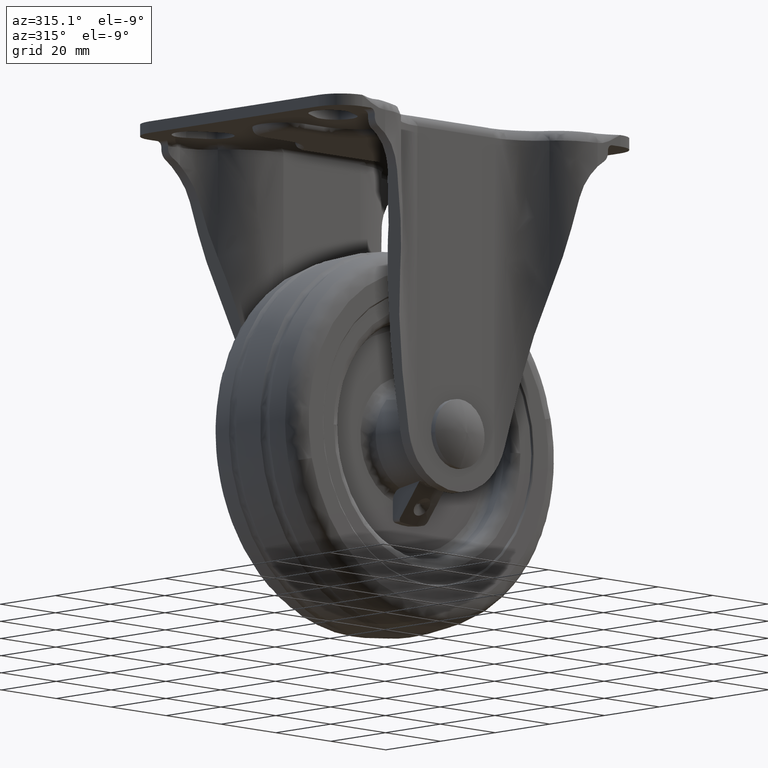
[diagram: clean part render]
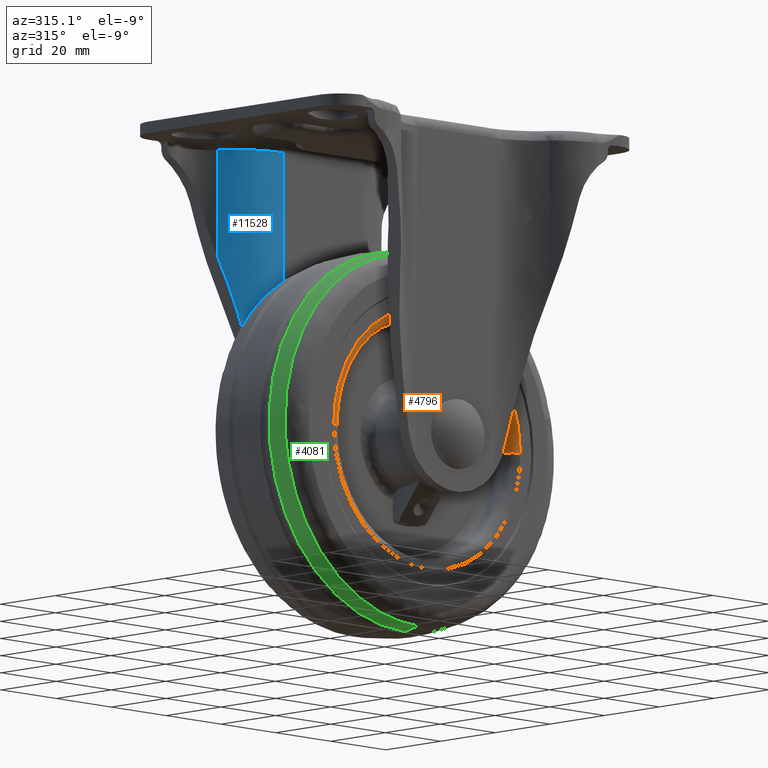
[diagram: same view with three faces highlighted in distinct colors, each labeled with its STEP entity id]
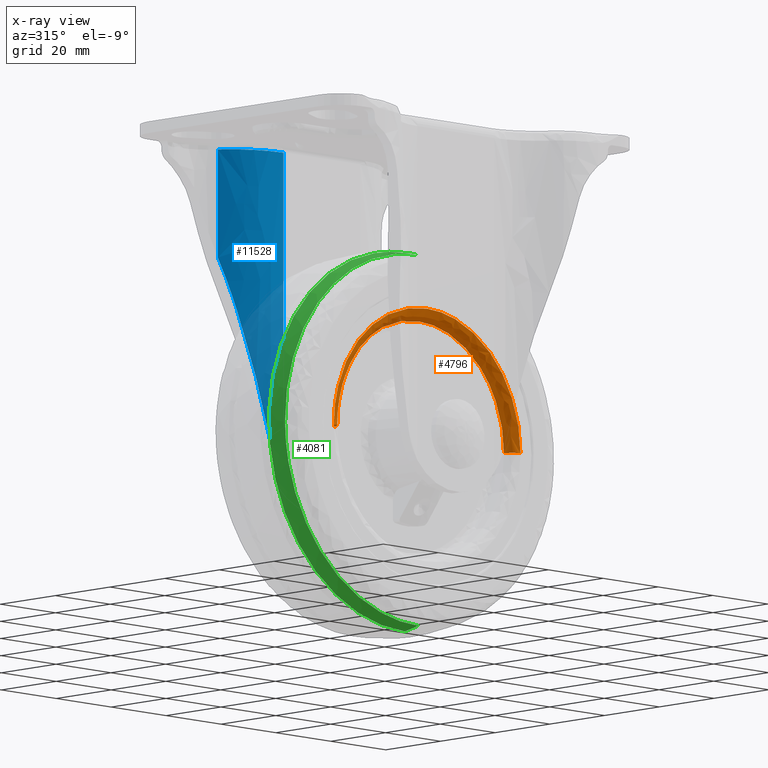
[diagram: x-ray of the same camera — body ghosted, the three highlighted faces saturated]
A machine part, auxiliary view with three faces highlighted in distinct colors.
The next image is the same camera in x-ray (body ghosted, the three faces saturated) — at least one of them is partly hidden behind the body in this view.
Their STEP definitions:

[orange] entity #4796 — the highlighted face is a freeform B-spline surface patch.
#4627=CARTESIAN_POINT('',(0.0,-15.500000000000000,34.000023999999932));
#4628=VERTEX_POINT('',#4627);
#4629=CARTESIAN_POINT('',(-34.000015998307823,-15.500000000000000,0.000007999999994));
#4630=VERTEX_POINT('',#4629);
#4631=CARTESIAN_POINT('',(0.0,-15.500000000000000,34.000023999999932));
#4632=CARTESIAN_POINT('',(-34.000015999153860,-15.500000000000002,34.000023999999925));
#4633=CARTESIAN_POINT('',(-34.000015998307816,-15.500000000000004,0.000007999999994));
#4641=(BOUNDED_CURVE()B_SPLINE_CURVE(2,(#4631,#4632,#4633),.UNSPECIFIED.,.F.,.U.)B_SPLINE_CURVE_WITH_KNOTS((3,3),(0.500000000000000,0.750000000000000),.UNSPECIFIED.)CURVE()GEOMETRIC_REPRESENTATION_ITEM()RATIONAL_B_SPLINE_CURVE((1.0,0.707106781186548,1.000000000000000))REPRESENTATION_ITEM(''));
#4642=EDGE_CURVE('',#4628,#4630,#4641,.T.);
#4644=CARTESIAN_POINT('',(34.000015998307823,-15.500000000000000,0.000007999999969));
#4645=VERTEX_POINT('',#4644);
#4646=CARTESIAN_POINT('',(34.000015998307831,-15.500000000000011,0.000007999999969));
#4647=CARTESIAN_POINT('',(34.000015999153909,-15.500000000000004,34.000023999999932));
#4648=CARTESIAN_POINT('',(0.0,-15.500000000000000,34.000023999999932));
#4656=(BOUNDED_CURVE()B_SPLINE_CURVE(2,(#4646,#4647,#4648),.UNSPECIFIED.,.F.,.U.)B_SPLINE_CURVE_WITH_KNOTS((3,3),(0.250000000000000,0.500000000000000),.UNSPECIFIED.)CURVE()GEOMETRIC_REPRESENTATION_ITEM()RATIONAL_B_SPLINE_CURVE((1.0,0.707106781186548,1.0))REPRESENTATION_ITEM(''));
#4657=EDGE_CURVE('',#4645,#4628,#4656,.T.);
#4690=CARTESIAN_POINT('',(34.208067895363627,-15.492777039613134,-0.956337981095983));
#4691=CARTESIAN_POINT('',(34.208067895363627,-15.492777039613134,-0.480949750329906));
#4692=CARTESIAN_POINT('',(34.208067895363627,-15.492777039613136,34.208075895363592));
#4693=CARTESIAN_POINT('',(8.378283E-015,-15.492777039613134,34.208075895363606));
#4694=CARTESIAN_POINT('',(-34.208067895363605,-15.492777039613136,34.208075895363606));
#4695=CARTESIAN_POINT('',(-34.208067895363619,-15.492777039613143,-0.480949750329894));
#4696=CARTESIAN_POINT('',(-34.208067895363634,-15.492777039613133,-0.956337981095975));
#4697=CARTESIAN_POINT('',(30.766798131416696,-15.732007255352647,-0.860131304978395));
#4698=CARTESIAN_POINT('',(30.766798131416689,-15.732007255352645,-0.432566270473374));
#4699=CARTESIAN_POINT('',(30.766798131416692,-15.732007255352645,30.766806131416647));
#4700=CARTESIAN_POINT('',(7.535443E-015,-15.732007255352645,30.766806131416683));
#4701=CARTESIAN_POINT('',(-30.766798131416667,-15.732007255352645,30.766806131416669));
#4702=CARTESIAN_POINT('',(-30.766798131416689,-15.732007255352647,-0.432566270473363));
#4703=CARTESIAN_POINT('',(-30.766798131416696,-15.732007255352647,-0.860131304978388));
#4704=CARTESIAN_POINT('',(31.007317085676490,-12.290827324424887,-0.866855430292556));
#4705=CARTESIAN_POINT('',(31.007317085676494,-12.290827324424892,-0.435947912941647));
#4706=CARTESIAN_POINT('',(31.007317085676490,-12.290827324424887,31.007325085676474));
#4707=CARTESIAN_POINT('',(7.594352E-015,-12.290827324424896,31.007325085676477));
#4708=CARTESIAN_POINT('',(-31.007317085676476,-12.290827324424887,31.007325085676474));
#4709=CARTESIAN_POINT('',(-31.007317085676490,-12.290827324424891,-0.435947912941635));
#4710=CARTESIAN_POINT('',(-31.007317085676497,-12.290827324424885,-0.866855430292549));
#4718=(BOUNDED_SURFACE()B_SPLINE_SURFACE(2,2,((#4690,#4697,#4704),(#4691,#4698,#4705),(#4692,#4699,#4706),(#4693,#4700,#4707),(#4694,#4701,#4708),(#4695,#4702,#4709),(#4696,#4703,#4710)),.UNSPECIFIED.,.F.,.F.,.U.)B_SPLINE_SURFACE_WITH_KNOTS((3,1,2,1,3),(3,3),(0.0,1.133555653187143,57.811338312544223,114.489120971901300,115.622676625088500),(0.0,5.468181776310822),.UNSPECIFIED.)GEOMETRIC_REPRESENTATION_ITEM()RATIONAL_B_SPLINE_SURFACE(((0.920730318469245,0.602530283667150,0.915630244211508),(0.915399262344060,0.599041615275418,0.910328717669053),(0.643515399959645,0.421119527297086,0.639950864003831),(0.910068206218876,0.595552946883686,0.905027191126598),(0.643515399959645,0.421119527297086,0.639950864003831),(0.915399262344061,0.599041615275418,0.910328717669053),(0.920730318469245,0.602530283667150,0.915630244211509)))REPRESENTATION_ITEM('')SURFACE());
#4719=ORIENTED_EDGE('',*,*,#4657,.T.);
#4720=ORIENTED_EDGE('',*,*,#4642,.T.);
#4721=CARTESIAN_POINT('',(-31.000015999999949,-12.500000000894159,0.000007999999983));
#4722=VERTEX_POINT('',#4721);
#4723=CARTESIAN_POINT('',(-34.000015998307823,-15.500000000000000,0.000007999999983));
#4724=CARTESIAN_POINT('',(-31.000016000894089,-15.499999998307873,0.000007999999983));
#4725=CARTESIAN_POINT('',(-31.000015999999938,-12.500000000894152,0.000007999999983));
#4733=(BOUNDED_CURVE()B_SPLINE_CURVE(2,(#4723,#4724,#4725),.UNSPECIFIED.,.F.,.U.)B_SPLINE_CURVE_WITH_KNOTS((3,3),(-1.726807298937444,-0.285995334347887),.UNSPECIFIED.)CURVE()GEOMETRIC_REPRESENTATION_ITEM()RATIONAL_B_SPLINE_CURVE((0.882788776010950,0.622603437896186,0.878205638947009))REPRESENTATION_ITEM(''));
#4734=EDGE_CURVE('',#4630,#4722,#4733,.T.);
#4735=ORIENTED_EDGE('',*,*,#4734,.T.);
#4736=CARTESIAN_POINT('',(0.0,-12.500000000000000,31.000023999999929));
#4737=VERTEX_POINT('',#4736);
#4738=CARTESIAN_POINT('',(0.0,-12.500000000000000,31.000023999999929));
#4739=CARTESIAN_POINT('',(-31.000015999999956,-12.500000000447079,31.000023999999929));
#4740=CARTESIAN_POINT('',(-31.000015999999949,-12.500000000894159,0.000007999999983));
#4748=(BOUNDED_CURVE()B_SPLINE_CURVE(2,(#4738,#4739,#4740),.UNSPECIFIED.,.F.,.U.)B_SPLINE_CURVE_WITH_KNOTS((3,3),(0.500000000000000,0.750000000000000),.UNSPECIFIED.)CURVE()GEOMETRIC_REPRESENTATION_ITEM()RATIONAL_B_SPLINE_CURVE((1.0,0.707106781186547,1.0))REPRESENTATION_ITEM(''));
#4749=EDGE_CURVE('',#4737,#4722,#4748,.T.);
#4750=ORIENTED_EDGE('',*,*,#4749,.F.);
#4751=CARTESIAN_POINT('',(22.486618136099690,-12.500000000463780,21.339009776125369));
#4752=VERTEX_POINT('',#4751);
#4753=CARTESIAN_POINT('',(22.486618136099697,-12.500000000463784,21.339009776125376));
#4754=CARTESIAN_POINT('',(13.318658844281147,-12.500000000192081,31.000023999999922));
#4755=CARTESIAN_POINT('',(0.0,-12.500000000000000,31.000023999999929));
#4763=(BOUNDED_CURVE()B_SPLINE_CURVE(2,(#4753,#4754,#4755),.UNSPECIFIED.,.F.,.U.)B_SPLINE_CURVE_WITH_KNOTS((3,3),(0.371049519383674,0.500000000000000),.UNSPECIFIED.)CURVE()GEOMETRIC_REPRESENTATION_ITEM()RATIONAL_B_SPLINE_CURVE((0.853699661908197,0.848925114658970,1.0))REPRESENTATION_ITEM(''));
#4764=EDGE_CURVE('',#4752,#4737,#4763,.T.);
#4765=ORIENTED_EDGE('',*,*,#4764,.F.);
#4766=CARTESIAN_POINT('',(31.000015999999949,-12.500000000894159,0.000007999999976));
#4767=VERTEX_POINT('',#4766);
#4768=CARTESIAN_POINT('',(31.000015999999945,-12.500000000894154,0.000007999999976));
#4769=CARTESIAN_POINT('',(31.000015999999945,-12.500000000715788,12.367759442363482));
#4770=CARTESIAN_POINT('',(22.486618136099722,-12.500000000463633,21.339009776125398));
#4778=(BOUNDED_CURVE()B_SPLINE_CURVE(2,(#4768,#4769,#4770),.UNSPECIFIED.,.F.,.U.)B_SPLINE_CURVE_WITH_KNOTS((3,3),(0.250000000000000,0.371049519383674),.UNSPECIFIED.)CURVE()GEOMETRIC_REPRESENTATION_ITEM()RATIONAL_B_SPLINE_CURVE((1.000000000000000,0.858181666527577,0.853699661908197))REPRESENTATION_ITEM(''));
#4779=EDGE_CURVE('',#4767,#4752,#4778,.T.);
#4780=ORIENTED_EDGE('',*,*,#4779,.F.);
#4781=CARTESIAN_POINT('',(34.000015998307823,-15.500000000000000,0.000007999999976));
#4782=CARTESIAN_POINT('',(31.000016000894089,-15.499999998307873,0.000007999999976));
#4783=CARTESIAN_POINT('',(31.000015999999938,-12.500000000894152,0.000007999999976));
#4791=(BOUNDED_CURVE()B_SPLINE_CURVE(2,(#4781,#4782,#4783),.UNSPECIFIED.,.F.,.U.)B_SPLINE_CURVE_WITH_KNOTS((3,3),(-1.726807298937444,-0.285995334347887),.UNSPECIFIED.)CURVE()GEOMETRIC_REPRESENTATION_ITEM()RATIONAL_B_SPLINE_CURVE((0.882788776010950,0.622603437896186,0.878205638947009))REPRESENTATION_ITEM(''));
#4792=EDGE_CURVE('',#4645,#4767,#4791,.T.);
#4793=ORIENTED_EDGE('',*,*,#4792,.F.);
#4794=EDGE_LOOP('',(#4719,#4720,#4735,#4750,#4765,#4780,#4793));
#4795=FACE_OUTER_BOUND('',#4794,.T.);
#4796=ADVANCED_FACE('',(#4795),#4718,.T.);

[blue] entity #11528 — the highlighted face is a freeform B-spline surface patch.
#8560=CARTESIAN_POINT('',(-14.0,23.0,77.500007999999895));
#8561=VERTEX_POINT('',#8560);
#8608=CARTESIAN_POINT('',(-29.654998817457351,31.233337934837401,77.500007999999895));
#8609=VERTEX_POINT('',#8608);
#8623=CARTESIAN_POINT('',(-14.0,23.0,77.500007999999895));
#8624=CARTESIAN_POINT('',(-23.992553981381850,23.0,77.500007999999880));
#8625=CARTESIAN_POINT('',(-29.654998817457290,31.233337934837429,77.500007999999895));
#8633=(BOUNDED_CURVE()B_SPLINE_CURVE(2,(#8623,#8624,#8625),.UNSPECIFIED.,.F.,.U.)CURVE()GEOMETRIC_REPRESENTATION_ITEM()QUASI_UNIFORM_CURVE()RATIONAL_B_SPLINE_CURVE((1.0,0.885061134747832,1.0))REPRESENTATION_ITEM(''));
#8634=EDGE_CURVE('',#8561,#8609,#8633,.T.);
#10103=CARTESIAN_POINT('',(-17.500308000000000,23.325208330341699,-1.211790999999920));
#10104=VERTEX_POINT('',#10103);
#10110=CARTESIAN_POINT('',(-29.654998817457351,31.233337934837401,49.291819853493003));
#10111=VERTEX_POINT('',#10110);
#10112=CARTESIAN_POINT('',(-17.500308000000000,23.325208330341699,-1.211790999999920));
#10113=CARTESIAN_POINT('',(-25.210060407934208,24.770285122033876,30.822782419823405));
#10114=CARTESIAN_POINT('',(-29.654998817457280,31.233337934837412,49.291819853492861));
#10122=(BOUNDED_CURVE()B_SPLINE_CURVE(2,(#10112,#10113,#10114),.UNSPECIFIED.,.F.,.U.)CURVE()GEOMETRIC_REPRESENTATION_ITEM()QUASI_UNIFORM_CURVE()RATIONAL_B_SPLINE_CURVE((1.0,0.924326878425061,1.0))REPRESENTATION_ITEM(''));
#10123=EDGE_CURVE('',#10104,#10111,#10122,.T.);
#10224=CARTESIAN_POINT('',(-14.0,23.0,-8.313707328428500));
#10225=VERTEX_POINT('',#10224);
#10243=CARTESIAN_POINT('',(-14.000000000000020,23.0,-8.313707328428510));
#10244=CARTESIAN_POINT('',(-14.417483858914441,23.000000000000011,-7.797097308839621));
#10245=CARTESIAN_POINT('',(-14.806603985233361,23.013699928957021,-7.257274417344528));
#10246=CARTESIAN_POINT('',(-15.256793867528010,23.041397554194919,-6.552913841733903));
#10247=CARTESIAN_POINT('',(-15.345119084673350,23.047476838405110,-6.410385243660469));
#10248=CARTESIAN_POINT('',(-15.517596260712891,23.060507368669739,-6.123170280960559));
#10249=CARTESIAN_POINT('',(-15.601636251857240,23.067448215575620,-5.978682960969853));
#10250=CARTESIAN_POINT('',(-15.847246566637690,23.089296598625889,-5.542603444824144));
#10251=CARTESIAN_POINT('',(-16.002312835778550,23.105225619174529,-5.248395760381320));
#10252=CARTESIAN_POINT('',(-16.441967055839150,23.155270782611780,-4.355406754627723));
#10253=CARTESIAN_POINT('',(-16.701092663041450,23.191594130120901,-3.746290525401482));
#10254=CARTESIAN_POINT('',(-17.151863221332391,23.261862654616628,-2.500228961621998));
#10255=CARTESIAN_POINT('',(-17.343512964950619,23.295819466184589,-1.863286215820445));
#10256=CARTESIAN_POINT('',(-17.500307999999620,23.325208330341709,-1.211790999999769));
#10257=B_SPLINE_CURVE_WITH_KNOTS('',3,(#10243,#10244,#10245,#10246,#10247,#10248,#10249,#10250,#10251,#10252,#10253,#10254,#10255,#10256),.UNSPECIFIED.,.F.,.U.,(4,2,2,2,2,2,4),(0.0,0.250000000000001,0.312500000000001,0.375000000000001,0.500000000000001,0.750000000000000,1.0),.UNSPECIFIED.);
#10258=EDGE_CURVE('',#10225,#10104,#10257,.T.);
#10822=CARTESIAN_POINT('',(-29.654998817457351,31.233337934837401,49.291819853493003));
#10823=CARTESIAN_POINT('',(-29.654998817457351,31.233337934837401,77.500007999999895));
#10824=QUASI_UNIFORM_CURVE('',1,(#10822,#10823),.UNSPECIFIED.,.F.,.U.);
#10825=EDGE_CURVE('',#10111,#8609,#10824,.T.);
#11503=CARTESIAN_POINT('',(-13.502637982150381,23.006510825464421,-10.459050211639211));
#11504=CARTESIAN_POINT('',(-13.502637982150381,23.006510825464421,79.698984455290869));
#11505=CARTESIAN_POINT('',(-24.389028467964266,22.721440658031337,-10.459050211639212));
#11506=CARTESIAN_POINT('',(-24.389028467964266,22.721440658031337,79.698984455290869));
#11507=CARTESIAN_POINT('',(-30.137396345835249,31.970820612960235,-10.459050211639214));
#11508=CARTESIAN_POINT('',(-30.137396345835249,31.970820612960235,79.698984455290883));
#11516=(BOUNDED_SURFACE()B_SPLINE_SURFACE(1,2,((#11503,#11505,#11507),(#11504,#11506,#11508)),.UNSPECIFIED.,.F.,.F.,.U.)B_SPLINE_SURFACE_WITH_KNOTS((2,2),(3,3),(0.0,90.158034666930092),(0.0,20.236092324576401),.UNSPECIFIED.)GEOMETRIC_REPRESENTATION_ITEM()RATIONAL_B_SPLINE_SURFACE(((1.0,0.866867436081429,0.998326519776626),(1.0,0.866867436081429,0.998326519776626)))REPRESENTATION_ITEM('')SURFACE());
#11517=CARTESIAN_POINT('',(-14.0,23.0,-8.313707328428500));
#11518=CARTESIAN_POINT('',(-14.0,23.0,77.500007999999895));
#11519=QUASI_UNIFORM_CURVE('',1,(#11517,#11518),.UNSPECIFIED.,.F.,.U.);
#11520=EDGE_CURVE('',#10225,#8561,#11519,.T.);
#11521=ORIENTED_EDGE('',*,*,#11520,.T.);
#11522=ORIENTED_EDGE('',*,*,#8634,.T.);
#11523=ORIENTED_EDGE('',*,*,#10825,.F.);
#11524=ORIENTED_EDGE('',*,*,#10123,.F.);
#11525=ORIENTED_EDGE('',*,*,#10258,.F.);
#11526=EDGE_LOOP('',(#11521,#11522,#11523,#11524,#11525));
#11527=FACE_OUTER_BOUND('',#11526,.T.);
#11528=ADVANCED_FACE('',(#11527),#11516,.T.);

[green] entity #4081 — the highlighted face is a freeform B-spline surface patch.
#3830=CARTESIAN_POINT('',(0.0,-7.351239303572061,-49.456640410581812));
#3831=VERTEX_POINT('',#3830);
#3845=CARTESIAN_POINT('',(-11.091680483019490,-7.351237768973823,48.196842260031303));
#3846=VERTEX_POINT('',#3845);
#3847=CARTESIAN_POINT('',(-11.091680483019490,-7.351237768973823,48.196842260031303));
#3848=CARTESIAN_POINT('',(-12.921258127043110,-7.351237772281817,47.775820826052900));
#3849=CARTESIAN_POINT('',(-16.983861130453889,-7.351237783460936,46.593833453359913));
#3850=CARTESIAN_POINT('',(-22.159568966550140,-7.351237809360788,44.336591953458417));
#3851=CARTESIAN_POINT('',(-27.525175483500171,-7.351237848138254,41.227743761516187));
#3852=CARTESIAN_POINT('',(-32.124284039570682,-7.351237893365965,37.790203575784417));
#3853=CARTESIAN_POINT('',(-36.095775795473863,-7.351237946457161,33.917102718684909));
#3854=CARTESIAN_POINT('',(-39.257493059067052,-7.351237998651727,30.193769387070599));
#3855=CARTESIAN_POINT('',(-42.610517932119748,-7.351238066709342,25.426250306063391));
#3856=CARTESIAN_POINT('',(-45.488452075928841,-7.351238148799944,19.808174566469251));
#3857=CARTESIAN_POINT('',(-47.351571386366302,-7.351238228101964,14.485116593776800));
#3858=CARTESIAN_POINT('',(-48.566288421413461,-7.351238299355902,9.754436975032160));
#3859=CARTESIAN_POINT('',(-49.261141711280132,-7.351238367339596,5.293609960430963));
#3860=CARTESIAN_POINT('',(-49.524938768033991,-7.351238445474069,0.227439925491816));
#3861=CARTESIAN_POINT('',(-49.337723136061477,-7.351238520118349,-4.562577901635667));
#3862=CARTESIAN_POINT('',(-48.661251158795920,-7.351238593476906,-9.214060174312465));
#3863=CARTESIAN_POINT('',(-47.499516995660102,-7.351238670632601,-14.055211811320721));
#3864=CARTESIAN_POINT('',(-45.904205166127582,-7.351238745159669,-18.677697145159129));
#3865=CARTESIAN_POINT('',(-43.283390910454031,-7.351238835402530,-24.196672020333310));
#3866=CARTESIAN_POINT('',(-40.039505613534992,-7.351238919874758,-29.272930066501861));
#3867=CARTESIAN_POINT('',(-35.922557577736733,-7.351239003022446,-34.164651946347583));
#3868=CARTESIAN_POINT('',(-31.112578055860592,-7.351239081247985,-38.660398897957833));
#3869=CARTESIAN_POINT('',(-25.320715076378960,-7.351239154162004,-42.702272174371863));
#3870=CARTESIAN_POINT('',(-19.666206268385530,-7.351239207410267,-45.492164849703748));
#3871=CARTESIAN_POINT('',(-14.189394657311119,-7.351239247821709,-47.474868886431047));
#3872=CARTESIAN_POINT('',(-7.978913069814613,-7.351239282550862,-49.007916002663073));
#3873=CARTESIAN_POINT('',(-2.909989601520620,-7.351239298448016,-49.456917936671971));
#3874=CARTESIAN_POINT('',(0.0,-7.351239303572061,-49.456640410581812));
#3875=B_SPLINE_CURVE_WITH_KNOTS('',3,(#3847,#3848,#3849,#3850,#3851,#3852,#3853,#3854,#3855,#3856,#3857,#3858,#3859,#3860,#3861,#3862,#3863,#3864,#3865,#3866,#3867,#3868,#3869,#3870,#3871,#3872,#3873,#3874),.UNSPECIFIED.,.F.,.U.,(4,1,1,1,1,1,1,1,1,1,1,1,1,1,1,1,1,1,1,1,1,1,1,1,1,4),(0.000000050107815,5.632199992441088,12.672589152925610,16.896771077698151,24.218735694875889,29.851016533465010,33.512003686553058,38.862643847538280,47.311057963375852,52.380145305052977,55.759446808206953,61.954965033929881,65.897524757206213,70.966457315663590,76.317145305438245,79.978175256754895,85.892008423422993,90.961088591141959,98.283026593958567,103.915306088493490,110.110818340337300,117.996014076991700,125.036359287971000,128.978948185682100,135.456078182151290,144.186009968732290),.UNSPECIFIED.);
#3876=EDGE_CURVE('',#3846,#3831,#3875,.T.);
#3939=CARTESIAN_POINT('',(0.0,-7.351239303544384,49.456656410585879));
#3940=VERTEX_POINT('',#3939);
#3941=CARTESIAN_POINT('',(0.0,-7.351239303544384,49.456656410585879));
#3942=CARTESIAN_POINT('',(-5.617386437252136,-7.351238536258927,49.456657065972692));
#3943=CARTESIAN_POINT('',(-11.091680483019491,-7.351237768973823,48.196842260031303));
#3951=(BOUNDED_CURVE()B_SPLINE_CURVE(2,(#3941,#3942,#3943),.UNSPECIFIED.,.F.,.U.)B_SPLINE_CURVE_WITH_KNOTS((3,3),(0.500000000000000,0.538352911863807),.UNSPECIFIED.)CURVE()GEOMETRIC_REPRESENTATION_ITEM()RATIONAL_B_SPLINE_CURVE((1.0,0.955066768773363,0.923920099602657))REPRESENTATION_ITEM(''));
#3952=EDGE_CURVE('',#3940,#3846,#3951,.T.);
#3988=CARTESIAN_POINT('',(1.353728050223383,-12.461412302570928,48.422254727937094));
#3989=CARTESIAN_POINT('',(1.372787984102923,-9.812226023154437,49.104020035807430));
#3990=CARTESIAN_POINT('',(1.383654395079201,-7.104475192851802,49.492706695032446));
#3991=CARTESIAN_POINT('',(0.680805911734747,-12.461412302570920,48.422254727937094));
#3992=CARTESIAN_POINT('',(0.690391378816058,-9.812226023154436,49.104020035807423));
#3993=CARTESIAN_POINT('',(0.695856225932707,-7.104475192851802,49.492706695032432));
#3994=CARTESIAN_POINT('',(-48.422246727937114,-12.461412302570926,48.422254727937094));
#3995=CARTESIAN_POINT('',(-49.104012035807429,-9.812226023154441,49.104020035807423));
#3996=CARTESIAN_POINT('',(-49.492698695032445,-7.104475192851805,49.492706695032425));
#3997=CARTESIAN_POINT('',(-48.422246727937114,-12.461412302570926,0.000007999999983));
#3998=CARTESIAN_POINT('',(-49.104012035807443,-9.812226023154436,0.000007999999983));
#3999=CARTESIAN_POINT('',(-49.492698695032452,-7.104475192851803,0.000007999999983));
#4000=CARTESIAN_POINT('',(-48.422246727937114,-12.461412302570926,-48.422238727937113));
#4001=CARTESIAN_POINT('',(-49.104012035807429,-9.812226023154441,-49.104004035807471));
#4002=CARTESIAN_POINT('',(-49.492698695032445,-7.104475192851805,-49.492690695032465));
#4003=CARTESIAN_POINT('',(0.680805911734746,-12.461412302570920,-48.422238727937142));
#4004=CARTESIAN_POINT('',(0.690391378816058,-9.812226023154436,-49.104004035807456));
#4005=CARTESIAN_POINT('',(0.695856225932706,-7.104475192851802,-49.492690695032465));
#4006=CARTESIAN_POINT('',(1.353728050223382,-12.461412302570928,-48.422238727937135));
#4007=CARTESIAN_POINT('',(1.372787984102922,-9.812226023154437,-49.104004035807471));
#4008=CARTESIAN_POINT('',(1.383654395079199,-7.104475192851802,-49.492690695032472));
#4016=(BOUNDED_SURFACE()B_SPLINE_SURFACE(2,2,((#3988,#3991,#3994,#3997,#4000,#4003,#4006),(#3989,#3992,#3995,#3998,#4001,#4004,#4007),(#3990,#3993,#3996,#3999,#4002,#4005,#4008)),.UNSPECIFIED.,.F.,.F.,.U.)B_SPLINE_SURFACE_WITH_KNOTS((3,3),(3,1,2,1,3),(0.0,5.492468911113583),(0.0,1.640043763034216,83.642231914744727,165.644420066455210,167.284463829489510),.UNSPECIFIED.)GEOMETRIC_REPRESENTATION_ITEM()RATIONAL_B_SPLINE_SURFACE(((0.959075534493791,0.953522458419161,0.670315578613041,0.947969382344531,0.670315578613041,0.953522458419161,0.959075534493791),(0.952477774560612,0.946962899713636,0.665704282517897,0.941448024866661,0.665704282517897,0.946962899713636,0.952477774560612),(0.948756743381398,0.943263413416418,0.663103585202385,0.937770083451436,0.663103585202385,0.943263413416418,0.948756743381398)))REPRESENTATION_ITEM('')SURFACE());
#4017=CARTESIAN_POINT('',(0.0,-12.222224753269980,48.483181086607793));
#4018=VERTEX_POINT('',#4017);
#4019=CARTESIAN_POINT('',(0.0,-12.222224753269979,48.483181086607786));
#4020=CARTESIAN_POINT('',(0.0,-9.810939690970026,49.091046708402530));
#4021=CARTESIAN_POINT('',(0.0,-7.351239303544384,49.456656410585879));
#4029=(BOUNDED_CURVE()B_SPLINE_CURVE(2,(#4019,#4020,#4021),.UNSPECIFIED.,.F.,.U.)B_SPLINE_CURVE_WITH_KNOTS((3,3),(0.422805827593339,0.454024863599281),.UNSPECIFIED.)CURVE()GEOMETRIC_REPRESENTATION_ITEM()RATIONAL_B_SPLINE_CURVE((0.947382930477331,0.941571285817127,0.938109999198782))REPRESENTATION_ITEM(''));
#4030=EDGE_CURVE('',#4018,#3940,#4029,.T.);
#4031=ORIENTED_EDGE('',*,*,#4030,.T.);
#4032=ORIENTED_EDGE('',*,*,#3952,.T.);
#4033=ORIENTED_EDGE('',*,*,#3876,.T.);
#4034=CARTESIAN_POINT('',(0.0,-12.222224753284831,-48.483165086604103));
#4035=VERTEX_POINT('',#4034);
#4036=CARTESIAN_POINT('',(0.0,-12.222224753284827,-48.483165086604096));
#4037=CARTESIAN_POINT('',(0.0,-9.810939690991217,-49.091030708398023));
#4038=CARTESIAN_POINT('',(0.0,-7.351239303572061,-49.456640410581805));
#4046=(BOUNDED_CURVE()B_SPLINE_CURVE(2,(#4036,#4037,#4038),.UNSPECIFIED.,.F.,.U.)B_SPLINE_CURVE_WITH_KNOTS((3,3),(0.422805827593242,0.454024863599105),.UNSPECIFIED.)CURVE()GEOMETRIC_REPRESENTATION_ITEM()RATIONAL_B_SPLINE_CURVE((0.947382930477368,0.941571285817171,0.938109999198821))REPRESENTATION_ITEM(''));
#4047=EDGE_CURVE('',#4035,#3831,#4046,.T.);
#4048=ORIENTED_EDGE('',*,*,#4047,.F.);
#4049=CARTESIAN_POINT('',(-47.248156099828762,-12.222224685044790,-10.873350362784800));
#4050=VERTEX_POINT('',#4049);
#4051=CARTESIAN_POINT('',(-47.248156099828762,-12.222224685044790,-10.873350362784805));
#4052=CARTESIAN_POINT('',(-38.592897477294564,-12.222224719167686,-48.483165056186358));
#4053=CARTESIAN_POINT('',(0.0,-12.222224753284831,-48.483165086604103));
#4061=(BOUNDED_CURVE()B_SPLINE_CURVE(2,(#4051,#4052,#4053),.UNSPECIFIED.,.F.,.U.)B_SPLINE_CURVE_WITH_KNOTS((3,3),(0.788352913426715,1.0),.UNSPECIFIED.)CURVE()GEOMETRIC_REPRESENTATION_ITEM()RATIONAL_B_SPLINE_CURVE((0.923920097064160,0.752040014244244,1.0))REPRESENTATION_ITEM(''));
#4062=EDGE_CURVE('',#4050,#4035,#4061,.T.);
#4063=ORIENTED_EDGE('',*,*,#4062,.F.);
#4064=CARTESIAN_POINT('',(0.0,-12.222224753269980,48.483181086607793));
#4065=CARTESIAN_POINT('',(-48.483174400415926,-12.222224726112533,48.483181110820489));
#4066=CARTESIAN_POINT('',(-48.483174268241349,-12.222224692002820,0.000008054632282));
#4067=CARTESIAN_POINT('',(-48.483174253228690,-12.222224688128566,-5.506809084480948));
#4068=CARTESIAN_POINT('',(-47.248156099828762,-12.222224685044790,-10.873350362784805));
#4076=(BOUNDED_CURVE()B_SPLINE_CURVE(2,(#4064,#4065,#4066,#4067,#4068),.UNSPECIFIED.,.F.,.U.)B_SPLINE_CURVE_WITH_KNOTS((3,2,3),(0.500000000000000,0.750000000000000,0.788352913426715),.UNSPECIFIED.)CURVE()GEOMETRIC_REPRESENTATION_ITEM()RATIONAL_B_SPLINE_CURVE((1.0,0.707106781186548,1.0,0.955066766942303,0.923920097064160))REPRESENTATION_ITEM(''));
#4077=EDGE_CURVE('',#4018,#4050,#4076,.T.);
#4078=ORIENTED_EDGE('',*,*,#4077,.F.);
#4079=EDGE_LOOP('',(#4031,#4032,#4033,#4048,#4063,#4078));
#4080=FACE_OUTER_BOUND('',#4079,.T.);
#4081=ADVANCED_FACE('',(#4080),#4016,.T.);